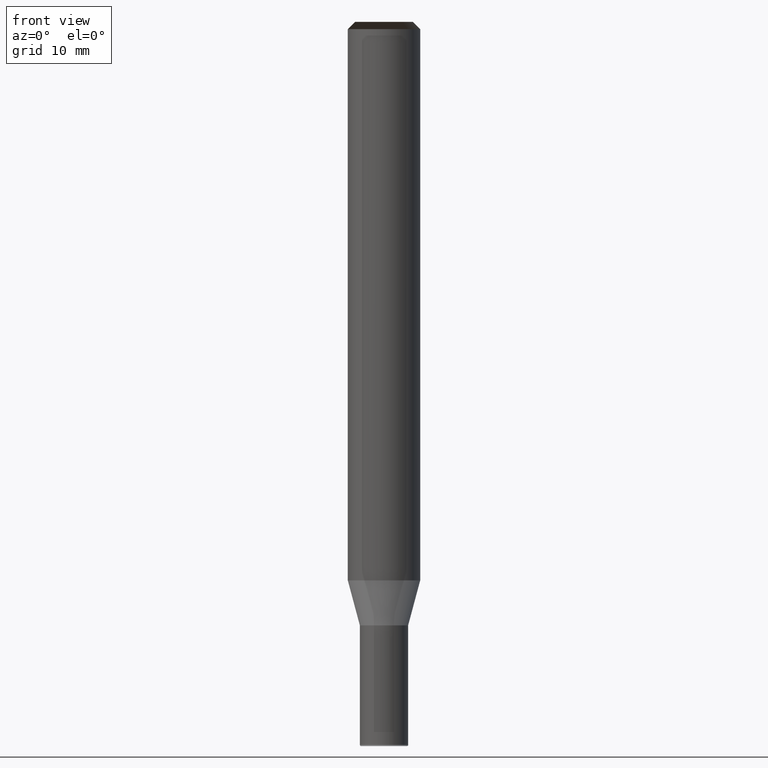
[diagram: clean part render]
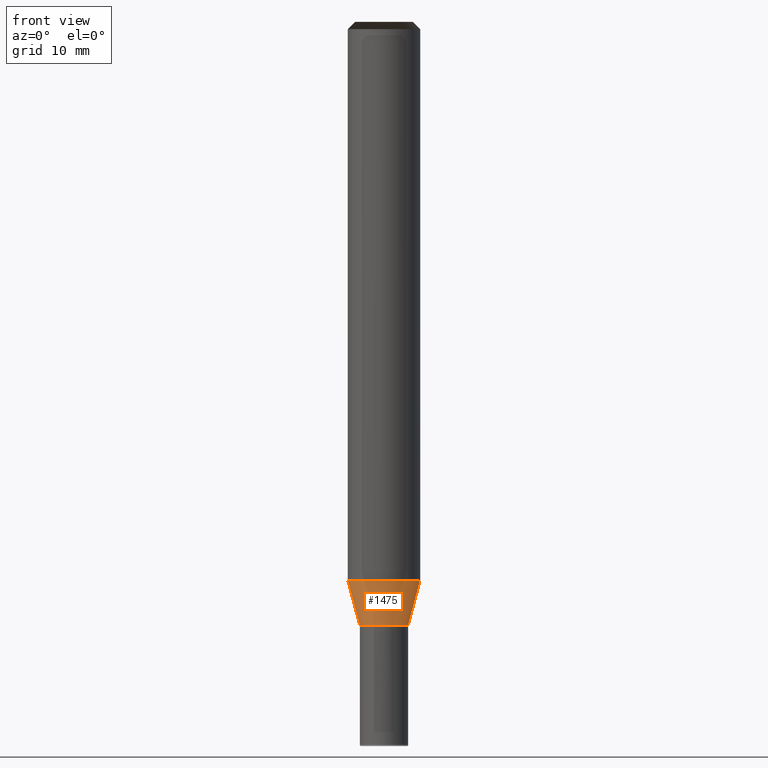
[diagram: same view with one face highlighted and labeled with its STEP entity id]
A machine part, front view. The second image highlights one B-rep face of the part: STEP entity #1475.
In plain terms, the highlighted face is a freeform B-spline surface patch.
Its self-contained STEP definition (entity closure, byte-faithful):
#1142=CARTESIAN_POINT('',(2.0,0.0,-3.732050807569));
#1146=CARTESIAN_POINT('',(-2.0,0.0,-3.732050807569));
#1163=CARTESIAN_POINT('',(-2.0,-2.0,-3.732050807569));
#1164=CARTESIAN_POINT('',(0.0,-2.0,-3.732050807569));
#1165=CARTESIAN_POINT('',(2.0,-2.0,-3.732050807569));
#1166=CARTESIAN_POINT('',(3.0,0.0,0.0));
#1170=CARTESIAN_POINT('',(-3.0,0.0,0.0));
#1182=CARTESIAN_POINT('',(-3.0,-3.0,0.0));
#1183=CARTESIAN_POINT('',(0.0,-3.0,0.0));
#1184=CARTESIAN_POINT('',(3.0,-3.0,0.0));
#1456=(
BOUNDED_SURFACE()
B_SPLINE_SURFACE(1,2,(
(#1146,#1163,#1164,#1165,#1142),
(#1170,#1182,#1183,#1184,#1166)
), .UNSPECIFIED.,.F.,.F.,.F.)
B_SPLINE_SURFACE_WITH_KNOTS((2,2),(3,2,3),(
0.0,1.0),(
0.0,0.5,1.0), .UNSPECIFIED.)
GEOMETRIC_REPRESENTATION_ITEM()
RATIONAL_B_SPLINE_SURFACE(((1.0,0.707106781187,1.0,0.707106781187,1.0),
(1.0,0.707106781187,1.0,0.707106781187,1.0)
))
REPRESENTATION_ITEM('')
SURFACE()
);
#1457=(
BOUNDED_CURVE()
B_SPLINE_CURVE(1,(#1170,#1146),.UNSPECIFIED.,.F.,.F.)
B_SPLINE_CURVE_WITH_KNOTS((2,2),
(0.0,1.0),.UNSPECIFIED.)
CURVE()
GEOMETRIC_REPRESENTATION_ITEM()
RATIONAL_B_SPLINE_CURVE((1.0,1.0))
REPRESENTATION_ITEM('')
);
#1458=(
BOUNDED_CURVE()
B_SPLINE_CURVE(2,(#1146,#1163,#1164,#1165,#1142),.UNSPECIFIED.,.F.,.F.)
B_SPLINE_CURVE_WITH_KNOTS((3,2,3),
(0.0,0.5,1.0),.UNSPECIFIED.)
CURVE()
GEOMETRIC_REPRESENTATION_ITEM()
RATIONAL_B_SPLINE_CURVE((1.0,0.707106781187,1.0,0.707106781187,1.0))
REPRESENTATION_ITEM('')
);
#1459=(
BOUNDED_CURVE()
B_SPLINE_CURVE(1,(#1142,#1166),.UNSPECIFIED.,.F.,.F.)
B_SPLINE_CURVE_WITH_KNOTS((2,2),
(0.0,1.0),.UNSPECIFIED.)
CURVE()
GEOMETRIC_REPRESENTATION_ITEM()
RATIONAL_B_SPLINE_CURVE((1.0,1.0))
REPRESENTATION_ITEM('')
);
#1460=(
BOUNDED_CURVE()
B_SPLINE_CURVE(2,(#1166,#1184,#1183,#1182,#1170),.UNSPECIFIED.,.F.,.F.)
B_SPLINE_CURVE_WITH_KNOTS((3,2,3),
(0.0,0.5,1.0),.UNSPECIFIED.)
CURVE()
GEOMETRIC_REPRESENTATION_ITEM()
RATIONAL_B_SPLINE_CURVE((1.0,0.707106781187,1.0,0.707106781187,1.0))
REPRESENTATION_ITEM('')
);
#1461=VERTEX_POINT('',#1142);
#1462=VERTEX_POINT('',#1146);
#1463=VERTEX_POINT('',#1166);
#1464=VERTEX_POINT('',#1170);
#1465=EDGE_CURVE('',#1464,#1462,#1457,.T.);
#1466=EDGE_CURVE('',#1462,#1461,#1458,.T.);
#1467=EDGE_CURVE('',#1461,#1463,#1459,.T.);
#1468=EDGE_CURVE('',#1463,#1464,#1460,.T.);
#1469=ORIENTED_EDGE('',*,*,#1465,.T.);
#1470=ORIENTED_EDGE('',*,*,#1466,.T.);
#1471=ORIENTED_EDGE('',*,*,#1467,.T.);
#1472=ORIENTED_EDGE('',*,*,#1468,.T.);
#1473=EDGE_LOOP('',(#1469,#1470,#1471,#1472));
#1474=FACE_OUTER_BOUND('',#1473,.T.);
#1475=ADVANCED_FACE('',(#1474),#1456,.T.);